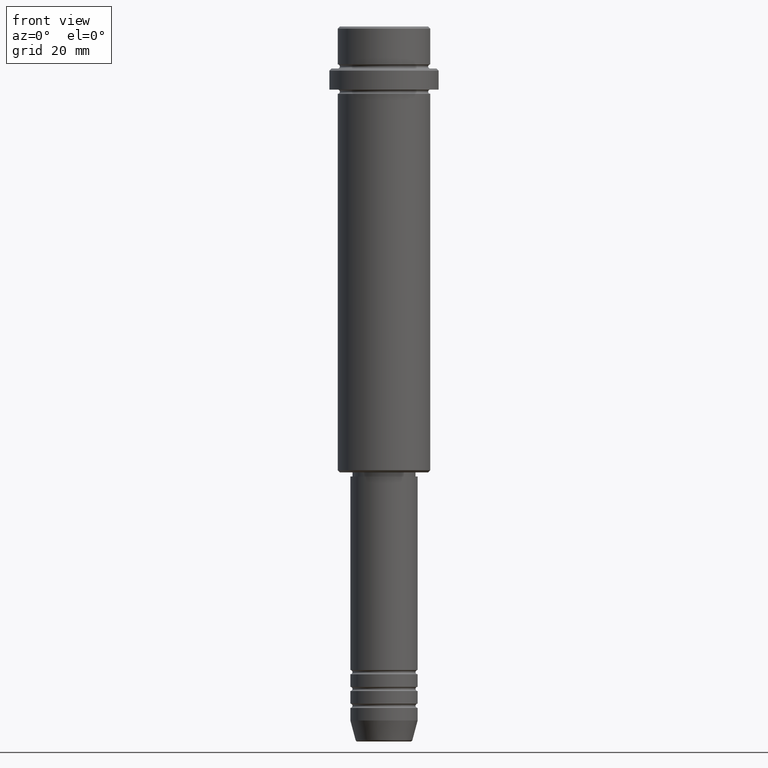
[diagram: clean part render]
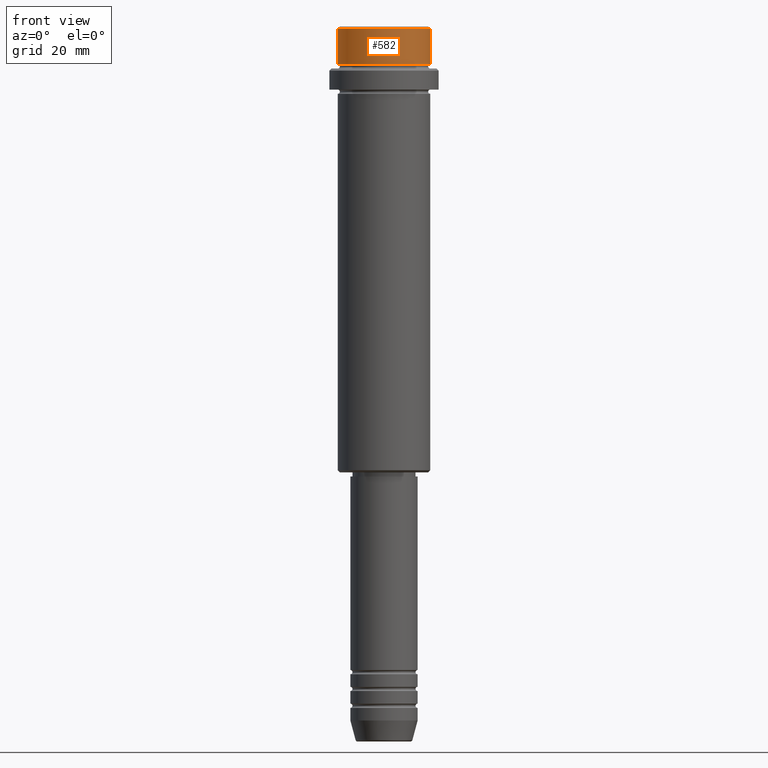
[diagram: same view with one face highlighted and labeled with its STEP entity id]
A machine part, front view. The second image highlights one B-rep face of the part: STEP entity #582.
In plain terms, the highlighted cylindrical surface (partial cylindrical patch) has radius 11 mm, axis along (-0, -0, 1).
Its self-contained STEP definition (entity closure, byte-faithful):
#36 = ORIENTED_EDGE ( 'NONE', *, *, #145, .T. ) ;
#61 = CARTESIAN_POINT ( 'NONE',  ( -10.99999999999998757, 1.347111479062086827E-15, -0.4999999999999882871 ) ) ;
#68 = CYLINDRICAL_SURFACE ( 'NONE', #1144, 10.99999999999998757 ) ;
#145 = EDGE_CURVE ( 'NONE', #329, #769, #1007, .T. ) ;
#146 = CARTESIAN_POINT ( 'NONE',  ( -10.99999999999998757, 1.347111479062086827E-15, 0.000000000000000000 ) ) ;
#172 = VERTEX_POINT ( 'NONE', #61 ) ;
#183 = DIRECTION ( 'NONE',  ( -0.000000000000000000, -0.000000000000000000, 1.000000000000000000 ) ) ;
#204 = CARTESIAN_POINT ( 'NONE',  ( 10.99999999999998757, 0.000000000000000000, 0.000000000000000000 ) ) ;
#214 = CARTESIAN_POINT ( 'NONE',  ( -10.99999999999997158, 1.347111479062085841E-15, -9.000000000000000000 ) ) ;
#329 = VERTEX_POINT ( 'NONE', #214 ) ;
#370 = CARTESIAN_POINT ( 'NONE',  ( 10.99999999999997158, 0.000000000000000000, -9.000000000000000000 ) ) ;
#376 = EDGE_CURVE ( 'NONE', #329, #172, #913, .T. ) ;
#378 = DIRECTION ( 'NONE',  ( 1.000000000000000000, 0.000000000000000000, 0.000000000000000000 ) ) ;
#432 = AXIS2_PLACEMENT_3D ( 'NONE', #716, #507, #833 ) ;
#499 = DIRECTION ( 'NONE',  ( 1.000000000000000000, 0.000000000000000000, 0.000000000000000000 ) ) ;
#507 = DIRECTION ( 'NONE',  ( -0.000000000000000000, -0.000000000000000000, 1.000000000000000000 ) ) ;
#510 = CARTESIAN_POINT ( 'NONE',  ( 10.99999999999998757, 0.000000000000000000, -0.4999999999999882871 ) ) ;
#582 = ADVANCED_FACE ( 'NONE', ( #1373 ), #68, .T. ) ;
#621 = EDGE_CURVE ( 'NONE', #769, #942, #1291, .T. ) ;
#716 = CARTESIAN_POINT ( 'NONE',  ( 0.000000000000000000, 0.000000000000000000, -9.000000000000000000 ) ) ;
#757 = VECTOR ( 'NONE', #817, 1000.000000000000000 ) ;
#766 = ORIENTED_EDGE ( 'NONE', *, *, #621, .T. ) ;
#769 = VERTEX_POINT ( 'NONE', #370 ) ;
#817 = DIRECTION ( 'NONE',  ( -0.000000000000000000, -0.000000000000000000, 1.000000000000000000 ) ) ;
#833 = DIRECTION ( 'NONE',  ( 1.000000000000000000, 0.000000000000000000, 0.000000000000000000 ) ) ;
#873 = EDGE_CURVE ( 'NONE', #942, #172, #877, .T. ) ;
#877 = CIRCLE ( 'NONE', #1393, 10.99999999999998757 ) ;
#913 = LINE ( 'NONE', #146, #757 ) ;
#942 = VERTEX_POINT ( 'NONE', #510 ) ;
#953 = CARTESIAN_POINT ( 'NONE',  ( 0.000000000000000000, 0.000000000000000000, 0.000000000000000000 ) ) ;
#1007 = CIRCLE ( 'NONE', #432, 10.99999999999997158 ) ;
#1077 = ORIENTED_EDGE ( 'NONE', *, *, #376, .F. ) ;
#1117 = DIRECTION ( 'NONE',  ( -0.000000000000000000, -0.000000000000000000, 1.000000000000000000 ) ) ;
#1123 = VECTOR ( 'NONE', #1117, 1000.000000000000000 ) ;
#1135 = CARTESIAN_POINT ( 'NONE',  ( 0.000000000000000000, 0.000000000000000000, -0.4999999999999882871 ) ) ;
#1144 = AXIS2_PLACEMENT_3D ( 'NONE', #953, #183, #499 ) ;
#1192 = ORIENTED_EDGE ( 'NONE', *, *, #873, .T. ) ;
#1291 = LINE ( 'NONE', #204, #1123 ) ;
#1350 = EDGE_LOOP ( 'NONE', ( #1077, #36, #766, #1192 ) ) ;
#1355 = DIRECTION ( 'NONE',  ( 0.000000000000000000, 0.000000000000000000, -1.000000000000000000 ) ) ;
#1373 = FACE_OUTER_BOUND ( 'NONE', #1350, .T. ) ;
#1393 = AXIS2_PLACEMENT_3D ( 'NONE', #1135, #1355, #378 ) ;